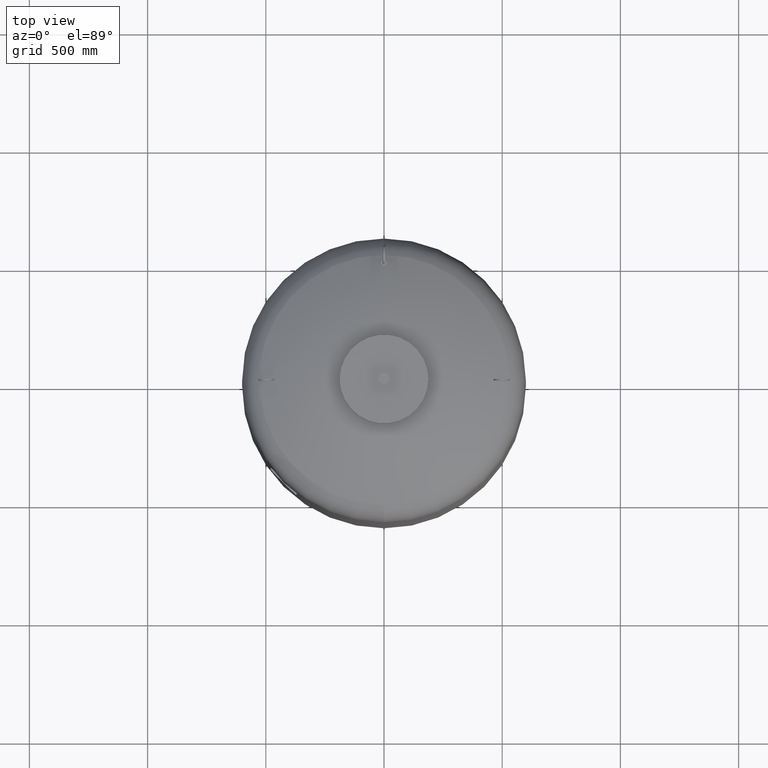
[diagram: clean part render]
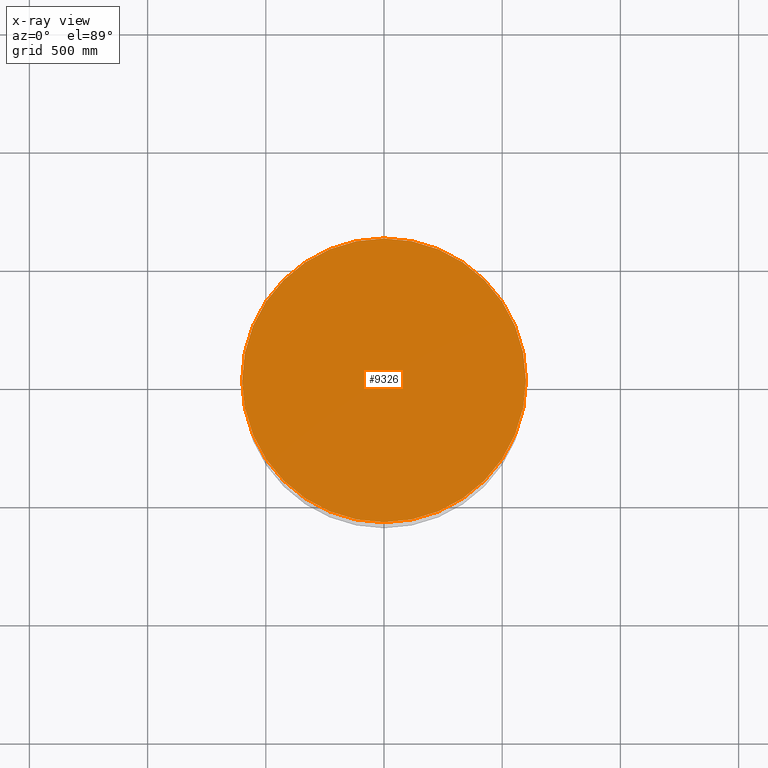
[diagram: x-ray — body ghosted, one internal face saturated and labeled with its STEP entity id]
A machine part, top view, then the same camera in x-ray: the body is ghosted and one INTERNAL B-rep face — a face not visible from any outside direction — is saturated and labeled: STEP entity #9326.
In plain terms, the highlighted planar face has unit normal (0, 0, 1).
Its self-contained STEP definition (entity closure, byte-faithful):
#9116=CARTESIAN_POINT('',(600.0,0.0,2145.0));
#9117=VERTEX_POINT('',#9116);
#9126=CARTESIAN_POINT('',(-600.000000000000110,-7.347638E-014,2145.0));
#9127=VERTEX_POINT('',#9126);
#9128=CARTESIAN_POINT('',(1.668796E-014,0.0,2145.0));
#9129=DIRECTION('',(0.0,0.0,1.0));
#9130=DIRECTION('',(1.0,0.0,0.0));
#9131=AXIS2_PLACEMENT_3D('',#9128,#9129,#9130);
#9132=CIRCLE('',#9131,600.0);
#9133=EDGE_CURVE('',#9127,#9117,#9132,.T.);
#9307=CARTESIAN_POINT('',(1.668796E-014,0.0,2145.0));
#9308=DIRECTION('',(0.0,0.0,1.0));
#9309=DIRECTION('',(1.0,0.0,0.0));
#9310=AXIS2_PLACEMENT_3D('',#9307,#9308,#9309);
#9311=CIRCLE('',#9310,600.0);
#9312=EDGE_CURVE('',#9117,#9127,#9311,.T.);
#9317=CARTESIAN_POINT('',(300.0,0.0,2145.0));
#9318=DIRECTION('',(0.0,0.0,1.0));
#9319=DIRECTION('',(1.0,0.0,0.0));
#9320=AXIS2_PLACEMENT_3D('',#9317,#9318,#9319);
#9321=PLANE('',#9320);
#9322=ORIENTED_EDGE('',*,*,#9312,.T.);
#9323=ORIENTED_EDGE('',*,*,#9133,.T.);
#9324=EDGE_LOOP('',(#9322,#9323));
#9325=FACE_OUTER_BOUND('',#9324,.T.);
#9326=ADVANCED_FACE('',(#9325),#9321,.T.);